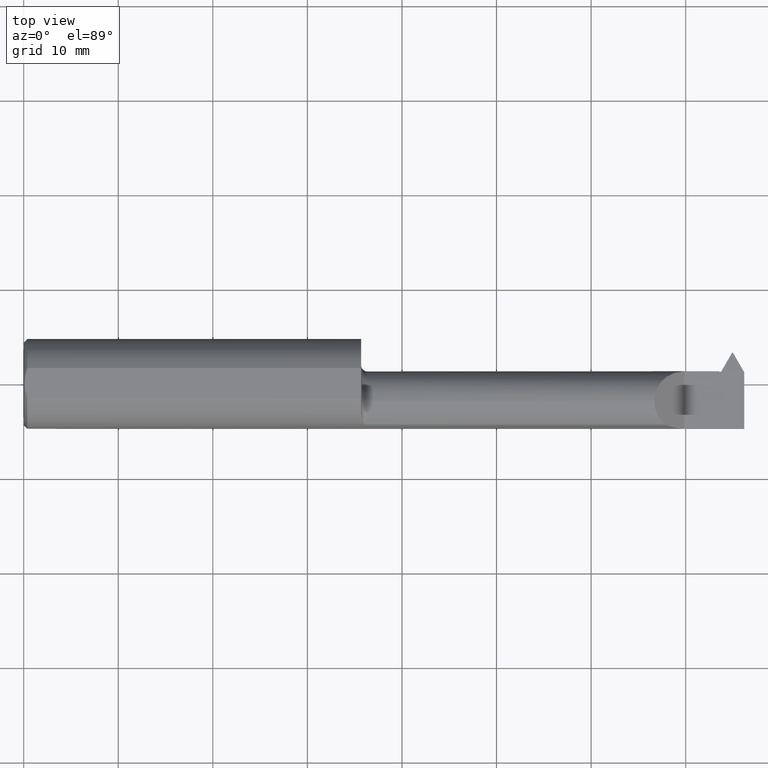
[diagram: clean part render]
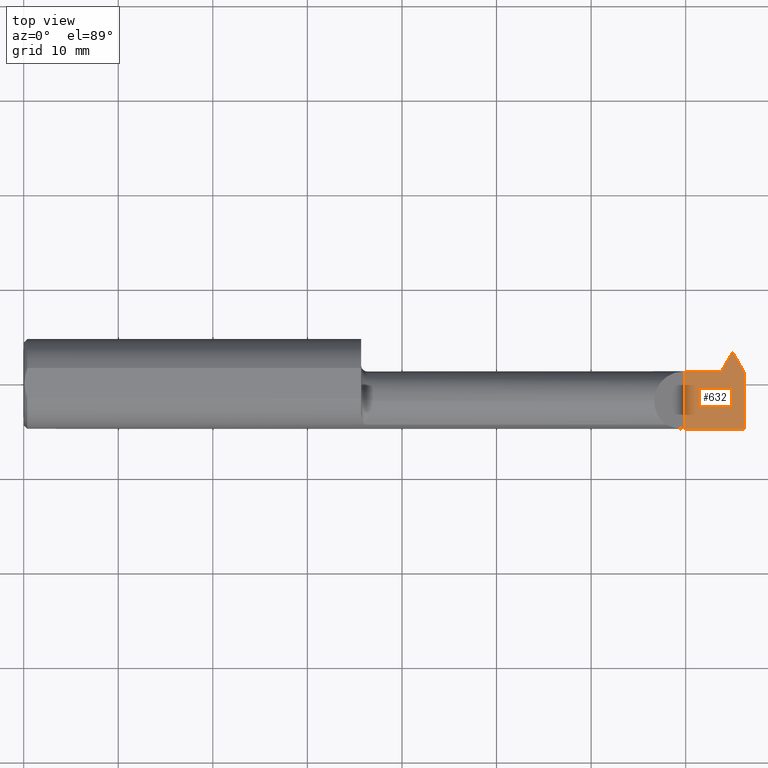
[diagram: same view with one face highlighted and labeled with its STEP entity id]
A machine part, top view. The second image highlights one B-rep face of the part: STEP entity #632.
In plain terms, the highlighted planar face has unit normal (-0, 0, -1).
Its self-contained STEP definition (entity closure, byte-faithful):
#53 = VERTEX_POINT ( 'NONE', #797 ) ;
#72 = CARTESIAN_POINT ( 'NONE',  ( 2.894999999999999574, 0.05065000000000000058, 0.000000000000000000 ) ) ;
#75 = CARTESIAN_POINT ( 'NONE',  ( 1.405000000000000249, 0.05265000000000001623, -6.429183357567480113E-17 ) ) ;
#87 = EDGE_CURVE ( 'NONE', #530, #880, #581, .T. ) ;
#99 = EDGE_CURVE ( 'NONE', #53, #824, #561, .T. ) ;
#109 = EDGE_CURVE ( 'NONE', #794, #914, #390, .T. ) ;
#134 = ORIENTED_EDGE ( 'NONE', *, *, #388, .F. ) ;
#139 = VECTOR ( 'NONE', #663, 39.37007874015748143 ) ;
#149 = VECTOR ( 'NONE', #313, 39.37007874015748143 ) ;
#157 = CARTESIAN_POINT ( 'NONE',  ( 2.750000000000000444, 0.2999999999999999889, -6.429183357567480113E-17 ) ) ;
#162 = CARTESIAN_POINT ( 'NONE',  ( 2.750000000000000444, -0.1873499999999999610, -6.429183357567478880E-17 ) ) ;
#175 = ORIENTED_EDGE ( 'NONE', *, *, #109, .T. ) ;
#190 = DIRECTION ( 'NONE',  ( -1.000000000000000000, -7.248451818505326452E-15, 0.000000000000000000 ) ) ;
#207 = ORIENTED_EDGE ( 'NONE', *, *, #99, .T. ) ;
#212 = CARTESIAN_POINT ( 'NONE',  ( 2.750000000000000444, 0.05265000000000000235, -6.429183357567478880E-17 ) ) ;
#223 = CARTESIAN_POINT ( 'NONE',  ( 2.949499999999999567, 0.1306500000000036243, -6.429183357567480113E-17 ) ) ;
#232 = FACE_OUTER_BOUND ( 'NONE', #547, .T. ) ;
#235 = ORIENTED_EDGE ( 'NONE', *, *, #637, .F. ) ;
#313 = DIRECTION ( 'NONE',  ( -0.000000000000000000, 1.000000000000000000, -0.000000000000000000 ) ) ;
#318 = CARTESIAN_POINT ( 'NONE',  ( 2.903311978464827359, 0.05065000000000000058, 0.000000000000000000 ) ) ;
#381 = CARTESIAN_POINT ( 'NONE',  ( 2.951000000000000512, 0.1332480762113577022, 0.000000000000000000 ) ) ;
#388 = EDGE_CURVE ( 'NONE', #794, #969, #870, .T. ) ;
#390 = LINE ( 'NONE', #749, #149 ) ;
#399 = VERTEX_POINT ( 'NONE', #212 ) ;
#443 = DIRECTION ( 'NONE',  ( -1.000000000000000000, 0.000000000000000000, 0.000000000000000000 ) ) ;
#446 = LINE ( 'NONE', #825, #770 ) ;
#451 = LINE ( 'NONE', #75, #139 ) ;
#456 = CARTESIAN_POINT ( 'NONE',  ( 2.894999999999999574, 0.05265000000000001623, 0.000000000000000000 ) ) ;
#460 = VERTEX_POINT ( 'NONE', #804 ) ;
#478 = DIRECTION ( 'NONE',  ( -5.463695987328527226E-15, -1.000000000000000000, -0.000000000000000000 ) ) ;
#483 = VECTOR ( 'NONE', #659, 39.37007874015748143 ) ;
#496 = ORIENTED_EDGE ( 'NONE', *, *, #655, .F. ) ;
#511 = ORIENTED_EDGE ( 'NONE', *, *, #546, .F. ) ;
#518 = PLANE ( 'NONE',  #658 ) ;
#524 = DIRECTION ( 'NONE',  ( -0.000000000000000000, 0.000000000000000000, -1.000000000000000000 ) ) ;
#525 = LINE ( 'NONE', #381, #830 ) ;
#530 = VERTEX_POINT ( 'NONE', #456 ) ;
#546 = EDGE_CURVE ( 'NONE', #969, #399, #671, .T. ) ;
#547 = EDGE_LOOP ( 'NONE', ( #175, #608, #207, #496, #235, #798, #722, #511, #134 ) ) ;
#561 = LINE ( 'NONE', #860, #573 ) ;
#573 = VECTOR ( 'NONE', #190, 39.37007874015748143 ) ;
#581 = LINE ( 'NONE', #872, #742 ) ;
#600 = CARTESIAN_POINT ( 'NONE',  ( 2.750000000000000444, 0.2999999999999999889, -6.429183357567480113E-17 ) ) ;
#608 = ORIENTED_EDGE ( 'NONE', *, *, #900, .F. ) ;
#609 = LINE ( 'NONE', #318, #815 ) ;
#629 = EDGE_CURVE ( 'NONE', #399, #530, #451, .T. ) ;
#632 = ADVANCED_FACE ( 'NONE', ( #232 ), #518, .F. ) ;
#637 = EDGE_CURVE ( 'NONE', #880, #460, #446, .T. ) ;
#652 = CARTESIAN_POINT ( 'NONE',  ( 3.000000000000000444, -0.1873499999999999610, -6.429183357567480113E-17 ) ) ;
#655 = EDGE_CURVE ( 'NONE', #460, #824, #609, .T. ) ;
#658 = AXIS2_PLACEMENT_3D ( 'NONE', #600, #524, #443 ) ;
#659 = DIRECTION ( 'NONE',  ( -1.000000000000000000, -0.000000000000000000, -0.000000000000000000 ) ) ;
#663 = DIRECTION ( 'NONE',  ( 1.000000000000000000, 0.000000000000000000, 0.000000000000000000 ) ) ;
#671 = LINE ( 'NONE', #157, #781 ) ;
#676 = DIRECTION ( 'NONE',  ( 0.5000000000000004441, -0.8660254037844382635, 0.000000000000000000 ) ) ;
#722 = ORIENTED_EDGE ( 'NONE', *, *, #629, .F. ) ;
#742 = VECTOR ( 'NONE', #478, 39.37007874015748143 ) ;
#749 = CARTESIAN_POINT ( 'NONE',  ( 3.000000000000000444, 0.2999999999999999889, -6.429183357567480113E-17 ) ) ;
#751 = DIRECTION ( 'NONE',  ( 1.000000000000000000, -0.000000000000000000, -0.000000000000000000 ) ) ;
#770 = VECTOR ( 'NONE', #751, 39.37007874015748143 ) ;
#781 = VECTOR ( 'NONE', #965, 39.37007874015748143 ) ;
#790 = CARTESIAN_POINT ( 'NONE',  ( 3.000000000000000444, -0.1873499999999998222, -6.429183357567480113E-17 ) ) ;
#794 = VERTEX_POINT ( 'NONE', #790 ) ;
#797 = CARTESIAN_POINT ( 'NONE',  ( 2.952500000000001013, 0.1306500000000036243, 0.000000000000000000 ) ) ;
#798 = ORIENTED_EDGE ( 'NONE', *, *, #87, .F. ) ;
#804 = CARTESIAN_POINT ( 'NONE',  ( 2.903311978464827359, 0.05065000000000000058, 0.000000000000000000 ) ) ;
#815 = VECTOR ( 'NONE', #910, 39.37007874015748854 ) ;
#824 = VERTEX_POINT ( 'NONE', #223 ) ;
#825 = CARTESIAN_POINT ( 'NONE',  ( 2.903311978464827359, 0.05065000000000000058, 0.000000000000000000 ) ) ;
#830 = VECTOR ( 'NONE', #676, 39.37007874015748854 ) ;
#833 = CARTESIAN_POINT ( 'NONE',  ( 3.000000000000000444, 0.04837758664048293078, 0.000000000000000000 ) ) ;
#860 = CARTESIAN_POINT ( 'NONE',  ( 2.750000000000001332, 0.1306500000000021533, -6.429183357567480113E-17 ) ) ;
#870 = LINE ( 'NONE', #652, #483 ) ;
#872 = CARTESIAN_POINT ( 'NONE',  ( 2.894999999999999574, 0.05065000000000000058, 0.000000000000000000 ) ) ;
#880 = VERTEX_POINT ( 'NONE', #72 ) ;
#900 = EDGE_CURVE ( 'NONE', #53, #914, #525, .T. ) ;
#910 = DIRECTION ( 'NONE',  ( 0.5000000000000036637, 0.8660254037844364872, 0.000000000000000000 ) ) ;
#914 = VERTEX_POINT ( 'NONE', #833 ) ;
#965 = DIRECTION ( 'NONE',  ( -0.000000000000000000, 1.000000000000000000, -0.000000000000000000 ) ) ;
#969 = VERTEX_POINT ( 'NONE', #162 ) ;